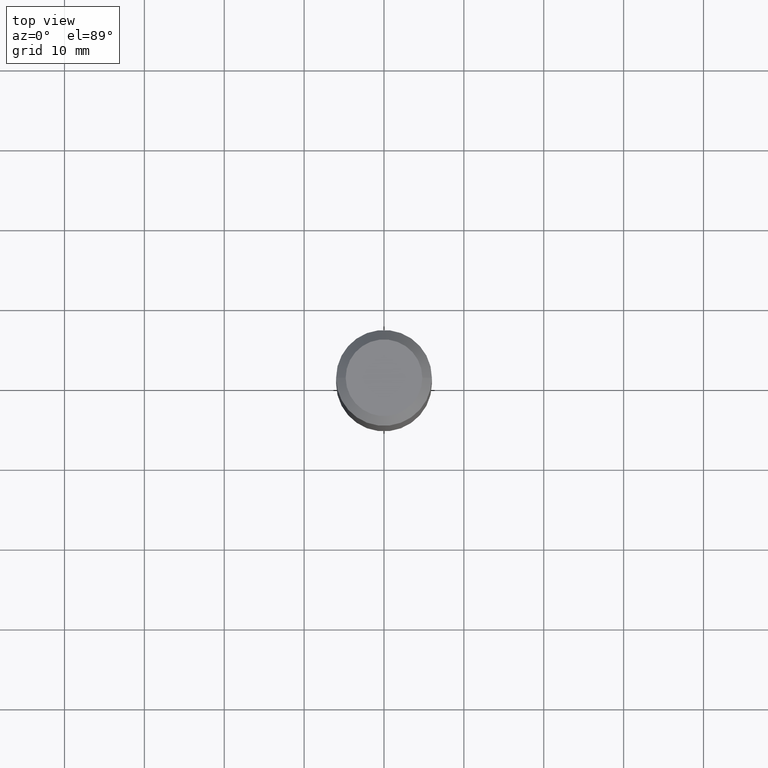
[diagram: clean part render]
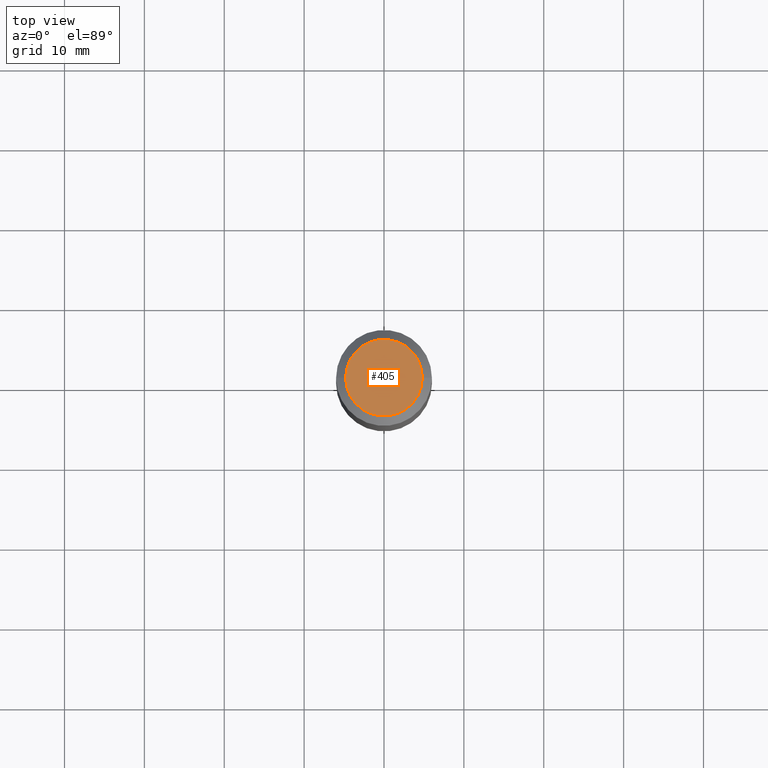
[diagram: same view with one face highlighted and labeled with its STEP entity id]
A machine part, top view. The second image highlights one B-rep face of the part: STEP entity #405.
In plain terms, the highlighted planar face has unit normal (0, -0, -1).
Its self-contained STEP definition (entity closure, byte-faithful):
#17 = DIRECTION ( 'NONE',  ( -2.445468806185136597E-29, 3.491481338843145583E-15, 1.000000000000000000 ) ) ;
#54 = PLANE ( 'NONE',  #81 ) ;
#62 = CARTESIAN_POINT ( 'NONE',  ( -0.1889600000000000168, 1.401969416799070942E-15, 3.855188123706346622E-18 ) ) ;
#81 = AXIS2_PLACEMENT_3D ( 'NONE', #491, #414, #300 ) ;
#147 = ORIENTED_EDGE ( 'NONE', *, *, #267, .T. ) ;
#182 = EDGE_LOOP ( 'NONE', ( #147, #236 ) ) ;
#236 = ORIENTED_EDGE ( 'NONE', *, *, #306, .T. ) ;
#260 = AXIS2_PLACEMENT_3D ( 'NONE', #440, #518, #324 ) ;
#263 = FACE_OUTER_BOUND ( 'NONE', #182, .T. ) ;
#267 = EDGE_CURVE ( 'NONE', #297, #344, #428, .T. ) ;
#271 = CARTESIAN_POINT ( 'NONE',  ( 0.1889600000000000168, -1.540873453589747738E-15, 3.855188123725863225E-18 ) ) ;
#297 = VERTEX_POINT ( 'NONE', #62 ) ;
#300 = DIRECTION ( 'NONE',  ( -1.000000000000000000, 6.982962677686265922E-15, -4.876176775795935793E-29 ) ) ;
#306 = EDGE_CURVE ( 'NONE', #344, #297, #445, .T. ) ;
#324 = DIRECTION ( 'NONE',  ( 1.000000000000000000, -6.982962677686266711E-15, 4.876185090822587894E-29 ) ) ;
#333 = CARTESIAN_POINT ( 'NONE',  ( -9.427742298522546243E-47, 1.346031739168365344E-32, 3.855188123715862256E-18 ) ) ;
#337 = AXIS2_PLACEMENT_3D ( 'NONE', #333, #17, #460 ) ;
#344 = VERTEX_POINT ( 'NONE', #271 ) ;
#405 = ADVANCED_FACE ( 'NONE', ( #263 ), #54, .F. ) ;
#414 = DIRECTION ( 'NONE',  ( 2.438088387897960049E-29, -3.491481338843145188E-15, -1.000000000000000000 ) ) ;
#428 = CIRCLE ( 'NONE', #260, 0.1889600000000000168 ) ;
#440 = CARTESIAN_POINT ( 'NONE',  ( -9.427742298522546243E-47, 1.346031739168365344E-32, 3.855188123715862256E-18 ) ) ;
#445 = CIRCLE ( 'NONE', #337, 0.1889600000000000168 ) ;
#460 = DIRECTION ( 'NONE',  ( 1.000000000000000000, -6.982962677686266711E-15, 4.876185090822587894E-29 ) ) ;
#491 = CARTESIAN_POINT ( 'NONE',  ( -4.713871149261273121E-47, 6.730158695841826722E-33, 1.927594061857931128E-18 ) ) ;
#518 = DIRECTION ( 'NONE',  ( -2.445468806185136597E-29, 3.491481338843145583E-15, 1.000000000000000000 ) ) ;